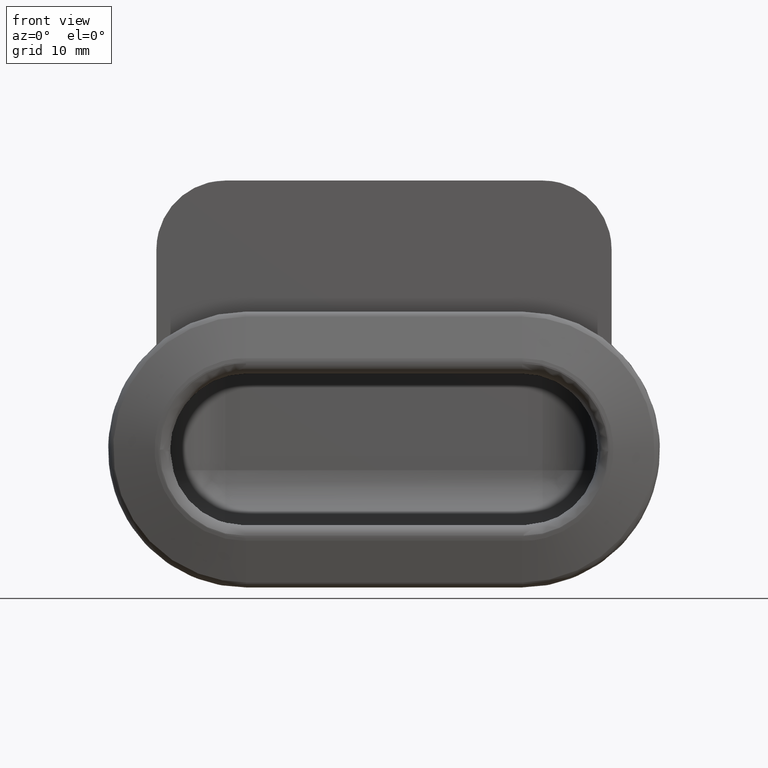
[diagram: clean part render]
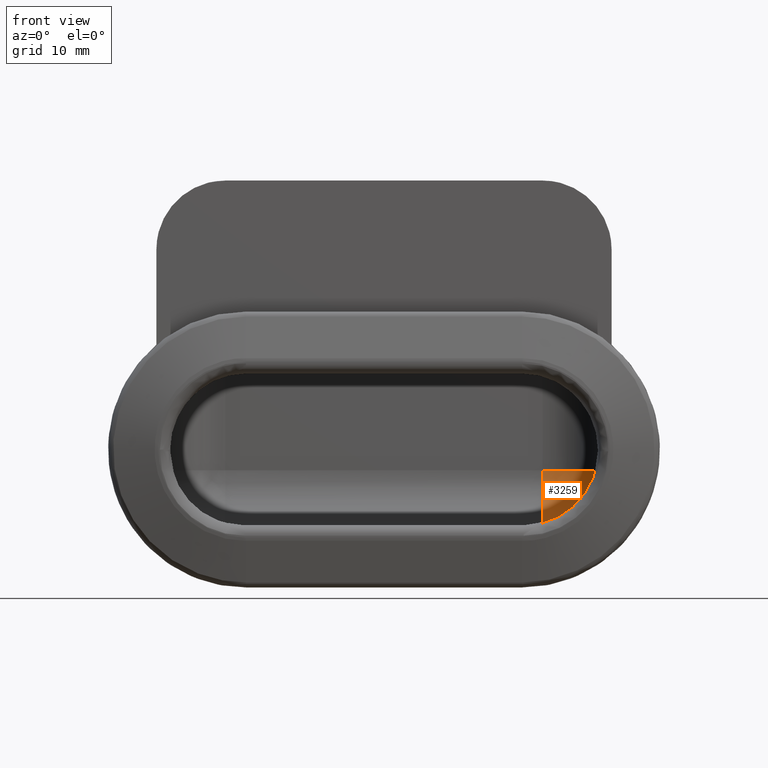
[diagram: same view with one face highlighted and labeled with its STEP entity id]
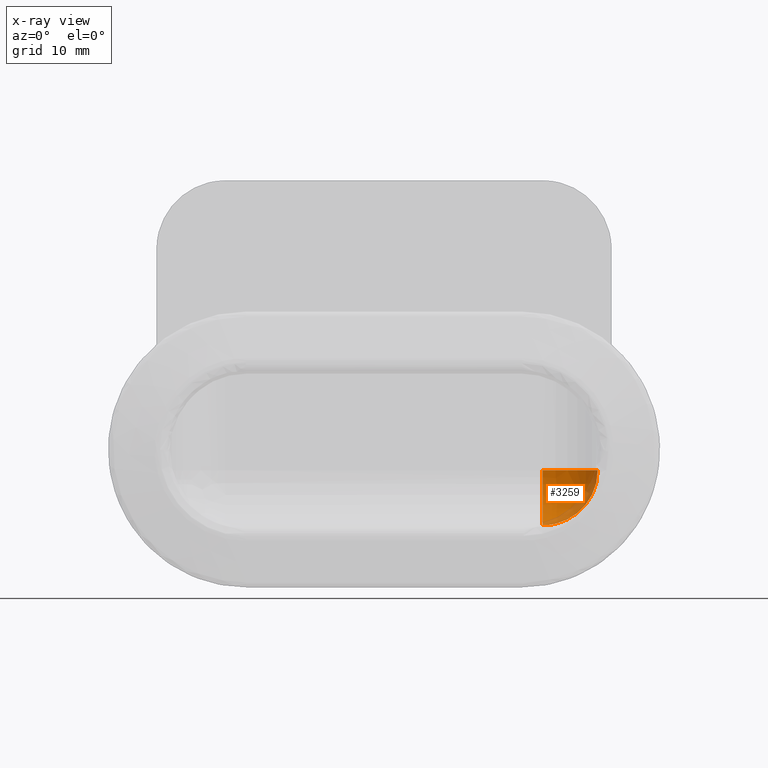
[diagram: x-ray of the same camera — body ghosted, the highlighted face saturated]
A machine part, front view. The second image highlights one B-rep face of the part: STEP entity #3259.
The next image is the same camera in x-ray: the body ghosted, the highlighted face saturated — about 21% of this face is hidden behind the body in this view.
In plain terms, the highlighted face is a freeform B-spline surface patch.
Its self-contained STEP definition (entity closure, byte-faithful):
#3169=CARTESIAN_POINT('',(23.0,27.0,-11.0));
#3170=VERTEX_POINT('',#3169);
#3179=CARTESIAN_POINT('',(31.0,27.0,-3.0));
#3180=VERTEX_POINT('',#3179);
#3188=CARTESIAN_POINT('',(31.0,27.0,-3.0));
#3189=CARTESIAN_POINT('',(31.000000000000007,27.000000000000011,-11.0));
#3190=CARTESIAN_POINT('',(23.0,27.0,-11.0));
#3198=(BOUNDED_CURVE()B_SPLINE_CURVE(2,(#3188,#3189,#3190),.UNSPECIFIED.,.F.,.U.)CURVE()GEOMETRIC_REPRESENTATION_ITEM()QUASI_UNIFORM_CURVE()RATIONAL_B_SPLINE_CURVE((1.0,0.707106781186548,1.0))REPRESENTATION_ITEM(''));
#3199=EDGE_CURVE('',#3180,#3170,#3198,.T.);
#3204=CARTESIAN_POINT('',(22.572602817600895,25.980100723097443,-10.923202453140457));
#3205=CARTESIAN_POINT('',(22.247510776790744,28.105079514217376,-11.179200065498566));
#3206=CARTESIAN_POINT('',(20.374163750592317,33.725121591723351,-8.529888000353143));
#3207=CARTESIAN_POINT('',(19.094212604095183,33.839807864531380,-4.400661698728753));
#3208=CARTESIAN_POINT('',(25.326844864015534,26.377401748518032,-11.122914921448608));
#3209=CARTESIAN_POINT('',(25.219197801169230,28.851151378647231,-11.435536922754530));
#3210=CARTESIAN_POINT('',(23.072074079302269,35.292523689142698,-8.399046244759042));
#3211=CARTESIAN_POINT('',(20.908583985681826,34.984541525069616,-3.870048616978675));
#3212=CARTESIAN_POINT('',(31.111002347614075,26.377401748518032,-7.032896850901721));
#3213=CARTESIAN_POINT('',(31.559784606227549,28.851151378647231,-6.952063800852994));
#3214=CARTESIAN_POINT('',(29.412660884360591,35.292523689142698,-3.915573122857508));
#3215=CARTESIAN_POINT('',(25.490362823174898,34.984541525069616,-0.630240867322216));
#3216=CARTESIAN_POINT('',(30.868565324331730,25.566714371457302,-2.822878449257959));
#3217=CARTESIAN_POINT('',(31.184603385585650,27.346322198271896,-2.461995245626789));
#3218=CARTESIAN_POINT('',(29.589688077131509,32.131068974078978,-0.206444986928943));
#3219=CARTESIAN_POINT('',(26.413048352730243,32.586175826941734,1.598449801010920));
#3227=(BOUNDED_SURFACE()B_SPLINE_SURFACE(2,2,((#3204,#3208,#3212,#3216),(#3205,#3209,#3213,#3217),(#3206,#3210,#3214,#3218),(#3207,#3211,#3215,#3219)),.UNSPECIFIED.,.F.,.F.,.U.)B_SPLINE_SURFACE_WITH_KNOTS((3,1,3),(3,1,3),(0.0,4.679066891486449,14.025942345202520),(0.0,5.767178928266103,14.643990494771719),.UNSPECIFIED.)GEOMETRIC_REPRESENTATION_ITEM()RATIONAL_B_SPLINE_SURFACE(((1.242341929414637,1.096198854031478,1.096198854031478,1.442429409651411),(1.146143075383160,1.0,1.0,1.346230555619933),(1.146143075383160,1.0,1.0,1.346230555619933),(1.530013190014792,1.383870114631632,1.383870114631632,1.730100670251565)))REPRESENTATION_ITEM('')SURFACE());
#3228=CARTESIAN_POINT('',(23.0,35.0,-3.0));
#3229=VERTEX_POINT('',#3228);
#3230=CARTESIAN_POINT('',(23.0,35.0,-3.0));
#3231=CARTESIAN_POINT('',(31.000000000000007,34.999999999999993,-3.0));
#3232=CARTESIAN_POINT('',(31.0,27.0,-3.0));
#3240=(BOUNDED_CURVE()B_SPLINE_CURVE(2,(#3230,#3231,#3232),.UNSPECIFIED.,.F.,.U.)CURVE()GEOMETRIC_REPRESENTATION_ITEM()QUASI_UNIFORM_CURVE()RATIONAL_B_SPLINE_CURVE((1.0,0.707106781186548,1.0))REPRESENTATION_ITEM(''));
#3241=EDGE_CURVE('',#3229,#3180,#3240,.T.);
#3242=ORIENTED_EDGE('',*,*,#3241,.F.);
#3243=CARTESIAN_POINT('',(23.0,27.0,-11.0));
#3244=CARTESIAN_POINT('',(22.999999999999993,34.999999999999993,-11.0));
#3245=CARTESIAN_POINT('',(23.0,35.0,-3.0));
#3253=(BOUNDED_CURVE()B_SPLINE_CURVE(2,(#3243,#3244,#3245),.UNSPECIFIED.,.F.,.U.)CURVE()GEOMETRIC_REPRESENTATION_ITEM()QUASI_UNIFORM_CURVE()RATIONAL_B_SPLINE_CURVE((1.0,0.707106781186548,1.0))REPRESENTATION_ITEM(''));
#3254=EDGE_CURVE('',#3170,#3229,#3253,.T.);
#3255=ORIENTED_EDGE('',*,*,#3254,.F.);
#3256=ORIENTED_EDGE('',*,*,#3199,.F.);
#3257=EDGE_LOOP('',(#3242,#3255,#3256));
#3258=FACE_OUTER_BOUND('',#3257,.T.);
#3259=ADVANCED_FACE('',(#3258),#3227,.F.);